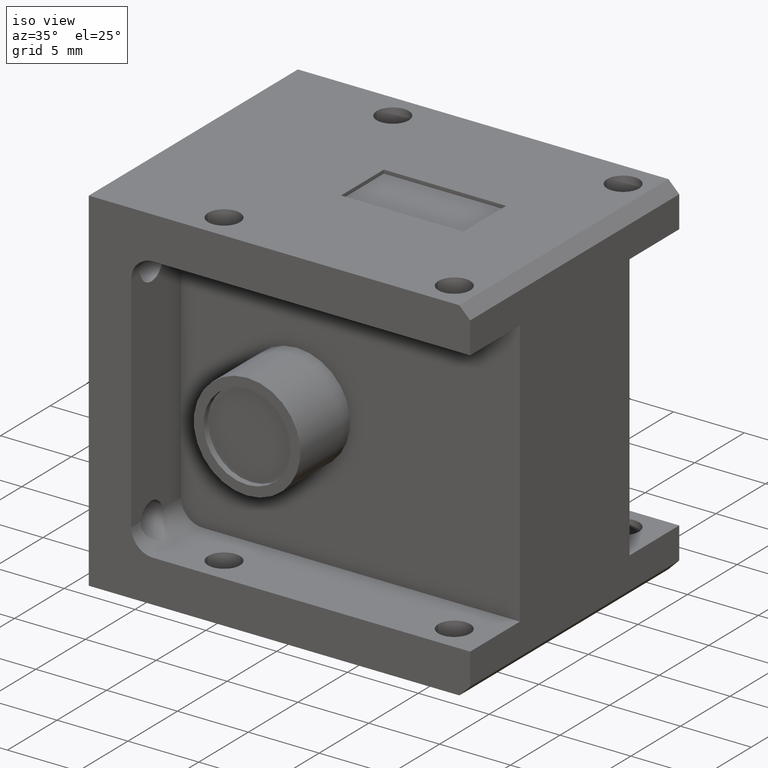
[diagram: clean part render]
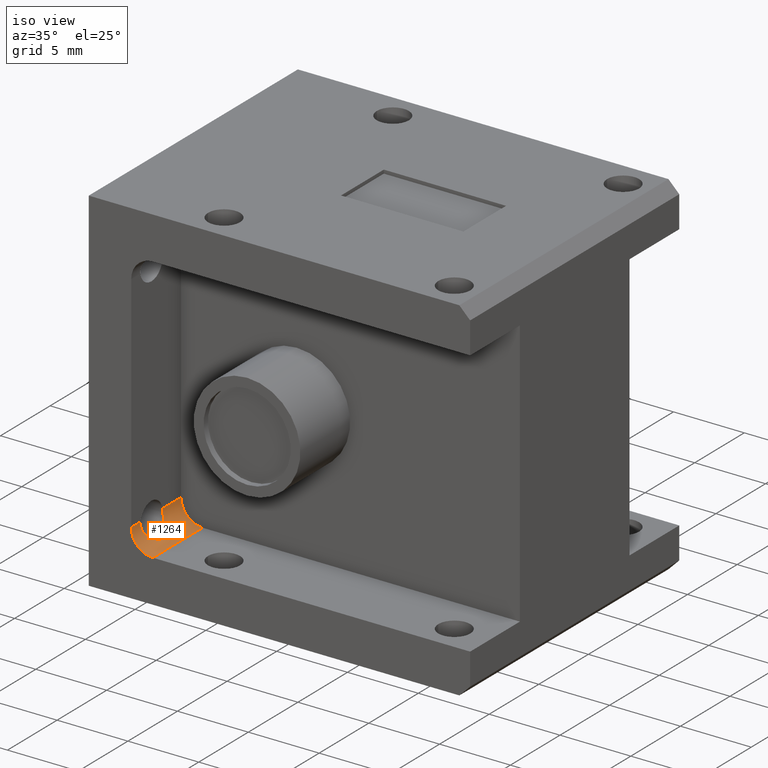
[diagram: same view with one face highlighted and labeled with its STEP entity id]
A machine part, iso view. The second image highlights one B-rep face of the part: STEP entity #1264.
In plain terms, the highlighted cylindrical surface (edge-blend (fillet) strip) has radius 1.524 mm, axis along (0, 1, 0).
Its self-contained STEP definition (entity closure, byte-faithful):
#13 = CARTESIAN_POINT ( 'NONE',  ( -0.4042671711059315800, 0.1237749928612213200, -0.3140654973531709600 ) ) ;
#26 = FACE_OUTER_BOUND ( 'NONE', #1640, .T. ) ;
#53 = B_SPLINE_CURVE_WITH_KNOTS ( 'NONE', 3,
 ( #546, #1897, #329, #2099, #904, #1118, #919, #2295, #1906, #1520, #2489, #1111 ),
 .UNSPECIFIED., .F., .F.,
 ( 4, 2, 2, 2, 2, 4 ),
 ( 0.002151521656839284800, 0.002421017170089394100, 0.002690512683339503800, 0.003229503709839722500, 0.003768494736339941500, 0.004307485762840160600 ),
 .UNSPECIFIED. ) ;
#83 = CARTESIAN_POINT ( 'NONE',  ( -0.4042671711059315800, 0.1975000000000000100, -0.3140654973531709600 ) ) ;
#100 = CARTESIAN_POINT ( 'NONE',  ( -0.4027128325500991000, 0.03577110598052388900, -0.3280903760274775900 ) ) ;
#130 = VERTEX_POINT ( 'NONE', #1818 ) ;
#161 = VERTEX_POINT ( 'NONE', #2202 ) ;
#237 = CARTESIAN_POINT ( 'NONE',  ( -0.3442671711059315800, 0.8300000000000000700, -0.3140654973531709600 ) ) ;
#281 = CARTESIAN_POINT ( 'NONE',  ( -0.4042671711059315800, 0.1975000000000000400, -0.3140654973531709600 ) ) ;
#286 = CARTESIAN_POINT ( 'NONE',  ( -0.3442671711059315800, 0.1975000000000000100, -0.3140654973531709600 ) ) ;
#323 = EDGE_CURVE ( 'NONE', #1863, #1113, #1303, .T. ) ;
#329 = CARTESIAN_POINT ( 'NONE',  ( -0.3741363435222694300, 0.08707949970626621700, -0.3661232836379371700 ) ) ;
#369 = EDGE_CURVE ( 'NONE', #1418, #130, #1977, .T. ) ;
#389 = EDGE_CURVE ( 'NONE', #1803, #2043, #53, .T. ) ;
#398 = ORIENTED_EDGE ( 'NONE', *, *, #389, .F. ) ;
#419 = DIRECTION ( 'NONE',  ( 0.0000000000000000000, 1.000000000000000000, 0.0000000000000000000 ) ) ;
#431 = DIRECTION ( 'NONE',  ( 0.0000000000000000000, 0.0000000000000000000, 1.000000000000000000 ) ) ;
#468 = CARTESIAN_POINT ( 'NONE',  ( -0.4042671711059315800, 0.03622500713877875600, -0.3140654973531709600 ) ) ;
#546 = CARTESIAN_POINT ( 'NONE',  ( -0.3733145462024875500, 0.08000000000000002900, -0.3665654973531708400 ) ) ;
#561 = ORIENTED_EDGE ( 'NONE', *, *, #1355, .F. ) ;
#573 = AXIS2_PLACEMENT_3D ( 'NONE', #237, #419, #431 ) ;
#611 = CARTESIAN_POINT ( 'NONE',  ( -0.3442671711059315800, 0.0000000000000000000, -0.3740654973531709600 ) ) ;
#657 = CARTESIAN_POINT ( 'NONE',  ( -0.3733145462024875500, 0.07646689671590384300, -0.3665654973531707300 ) ) ;
#675 = CARTESIAN_POINT ( 'NONE',  ( -0.3994290619298373500, 0.03828424269429555500, -0.3379153268310746100 ) ) ;
#682 = CARTESIAN_POINT ( 'NONE',  ( -0.3931305192257227900, 0.04445173072471525500, -0.3490087527417410900 ) ) ;
#722 = EDGE_CURVE ( 'NONE', #130, #1863, #1398, .T. ) ;
#738 = VECTOR ( 'NONE', #2229, 39.37007874015748100 ) ;
#904 = CARTESIAN_POINT ( 'NONE',  ( -0.3783475934722462200, 0.09652432411557544700, -0.3634965827607874500 ) ) ;
#919 = CARTESIAN_POINT ( 'NONE',  ( -0.3876968576130343000, 0.1095643073356906100, -0.3558709387411339600 ) ) ;
#969 = ORIENTED_EDGE ( 'NONE', *, *, #323, .F. ) ;
#1014 = ORIENTED_EDGE ( 'NONE', *, *, #722, .F. ) ;
#1063 = DIRECTION ( 'NONE',  ( 0.0000000000000000000, 0.0000000000000000000, 1.000000000000000000 ) ) ;
#1091 = DIRECTION ( 'NONE',  ( 0.0000000000000000000, 1.000000000000000000, 0.0000000000000000000 ) ) ;
#1111 = CARTESIAN_POINT ( 'NONE',  ( -0.4042671711059315800, 0.1237749928612213200, -0.3140654973531709600 ) ) ;
#1113 = VERTEX_POINT ( 'NONE', #1743 ) ;
#1118 = CARTESIAN_POINT ( 'NONE',  ( -0.3836761025880395200, 0.1047868660968380700, -0.3595249924274062600 ) ) ;
#1156 = ORIENTED_EDGE ( 'NONE', *, *, #369, .F. ) ;
#1252 = CARTESIAN_POINT ( 'NONE',  ( -0.4042671711059314700, 0.03558047308342760600, -0.3175923065621471000 ) ) ;
#1264 = ADVANCED_FACE ( 'NONE', ( #26 ), #1974, .F. ) ;
#1286 = CARTESIAN_POINT ( 'NONE',  ( -0.3442671711059315800, 0.0000000000000000000, -0.3140654973531709600 ) ) ;
#1287 = ORIENTED_EDGE ( 'NONE', *, *, #1301, .F. ) ;
#1301 = EDGE_CURVE ( 'NONE', #161, #1803, #1422, .T. ) ;
#1303 = CIRCLE ( 'NONE', #1406, 0.06000000000000001200 ) ;
#1333 = LINE ( 'NONE', #83, #738 ) ;
#1338 = CARTESIAN_POINT ( 'NONE',  ( -0.3442671711059315800, 0.0000000000000000000, -0.3740654973531709600 ) ) ;
#1355 = EDGE_CURVE ( 'NONE', #1113, #161, #1333, .T. ) ;
#1389 = VECTOR ( 'NONE', #2297, 39.37007874015748100 ) ;
#1398 = LINE ( 'NONE', #611, #1823 ) ;
#1406 = AXIS2_PLACEMENT_3D ( 'NONE', #1286, #1091, #1672 ) ;
#1418 = VERTEX_POINT ( 'NONE', #281 ) ;
#1422 = B_SPLINE_CURVE_WITH_KNOTS ( 'NONE', 3,
 ( #468, #1252, #1854, #100, #1846, #675, #1448, #1653, #682, #1459, #1698, #2220, #2052, #1435, #657, #2042 ),
 .UNSPECIFIED., .F., .F.,
 ( 4, 2, 2, 2, 2, 2, 2, 4 ),
 ( 0.0000000000000000000, 0.0002689402071049098900, 0.0005378804142098197800, 0.0008068206213147296800, 0.001075760828419639600, 0.001613641242629462200, 0.001882581449734373400, 0.002151521656839284800 ),
 .UNSPECIFIED. ) ;
#1435 = CARTESIAN_POINT ( 'NONE',  ( -0.3741275573554321300, 0.07294150302314919600, -0.3661286842636629600 ) ) ;
#1448 = CARTESIAN_POINT ( 'NONE',  ( -0.3979959565049163700, 0.03958661898137486700, -0.3409597326889619600 ) ) ;
#1459 = CARTESIAN_POINT ( 'NONE',  ( -0.3876502527856726100, 0.05048733137656265200, -0.3559288437372789000 ) ) ;
#1478 = EDGE_CURVE ( 'NONE', #2043, #1418, #2367, .T. ) ;
#1520 = CARTESIAN_POINT ( 'NONE',  ( -0.4029519318587882500, 0.1245659327074124400, -0.3283083444400082300 ) ) ;
#1530 = CARTESIAN_POINT ( 'NONE',  ( -0.4042671711059315800, 0.1975000000000000100, -0.3140654973531709600 ) ) ;
#1640 = EDGE_LOOP ( 'NONE', ( #1287, #561, #969, #1014, #1156, #2259, #398 ) ) ;
#1651 = DIRECTION ( 'NONE',  ( -0.0000000000000000000, -1.000000000000000000, -0.0000000000000000000 ) ) ;
#1653 = CARTESIAN_POINT ( 'NONE',  ( -0.3948572582753270800, 0.04266172950159736300, -0.3464803913826141600 ) ) ;
#1672 = DIRECTION ( 'NONE',  ( 0.0000000000000000000, 0.0000000000000000000, 1.000000000000000000 ) ) ;
#1698 = CARTESIAN_POINT ( 'NONE',  ( -0.3837094716946559100, 0.05516294147556507300, -0.3594995392197616900 ) ) ;
#1743 = CARTESIAN_POINT ( 'NONE',  ( -0.4042671711059315800, 0.0000000000000000000, -0.3140654973531710200 ) ) ;
#1803 = VERTEX_POINT ( 'NONE', #1889 ) ;
#1818 = CARTESIAN_POINT ( 'NONE',  ( -0.3442671711059316400, 0.1975000000000000400, -0.3740654973531709600 ) ) ;
#1823 = VECTOR ( 'NONE', #1987, 39.37007874015748100 ) ;
#1846 = CARTESIAN_POINT ( 'NONE',  ( -0.4017778012133758600, 0.03638468408346076000, -0.3315061392575932600 ) ) ;
#1854 = CARTESIAN_POINT ( 'NONE',  ( -0.4039585531822228500, 0.03537300687601169900, -0.3211033570631590100 ) ) ;
#1863 = VERTEX_POINT ( 'NONE', #1338 ) ;
#1889 = CARTESIAN_POINT ( 'NONE',  ( -0.3733145462024875500, 0.08000000000000002900, -0.3665654973531708400 ) ) ;
#1897 = CARTESIAN_POINT ( 'NONE',  ( -0.3733145462024875000, 0.08354039841481096500, -0.3665654973531710100 ) ) ;
#1906 = CARTESIAN_POINT ( 'NONE',  ( -0.3982421373208754300, 0.1207547905062045100, -0.3411480168049266800 ) ) ;
#1974 = CYLINDRICAL_SURFACE ( 'NONE', #573, 0.06000000000000001200 ) ;
#1977 = CIRCLE ( 'NONE', #2433, 0.06000000000000001200 ) ;
#1987 = DIRECTION ( 'NONE',  ( 0.0000000000000000000, -1.000000000000000000, 0.0000000000000000000 ) ) ;
#2042 = CARTESIAN_POINT ( 'NONE',  ( -0.3733145462024875500, 0.08000000000000002900, -0.3665654973531708400 ) ) ;
#2043 = VERTEX_POINT ( 'NONE', #13 ) ;
#2052 = CARTESIAN_POINT ( 'NONE',  ( -0.3766738311755852800, 0.06644855311395744800, -0.3645830832156812800 ) ) ;
#2099 = CARTESIAN_POINT ( 'NONE',  ( -0.3766610469835550700, 0.09352024705101573400, -0.3645909105561563900 ) ) ;
#2202 = CARTESIAN_POINT ( 'NONE',  ( -0.4042671711059315800, 0.03622500713877875600, -0.3140654973531709600 ) ) ;
#2220 = CARTESIAN_POINT ( 'NONE',  ( -0.3783384380670229400, 0.06348909881065821500, -0.3635036969227931600 ) ) ;
#2229 = DIRECTION ( 'NONE',  ( -0.0000000000000000000, 1.000000000000000000, -0.0000000000000000000 ) ) ;
#2259 = ORIENTED_EDGE ( 'NONE', *, *, #1478, .F. ) ;
#2295 = CARTESIAN_POINT ( 'NONE',  ( -0.3949181818850000500, 0.1175167703470558600, -0.3467504741285383800 ) ) ;
#2297 = DIRECTION ( 'NONE',  ( -0.0000000000000000000, 1.000000000000000000, -0.0000000000000000000 ) ) ;
#2367 = LINE ( 'NONE', #1530, #1389 ) ;
#2433 = AXIS2_PLACEMENT_3D ( 'NONE', #286, #1651, #1063 ) ;
#2489 = CARTESIAN_POINT ( 'NONE',  ( -0.4042671711059315800, 0.1250649906793418200, -0.3211242030130728200 ) ) ;